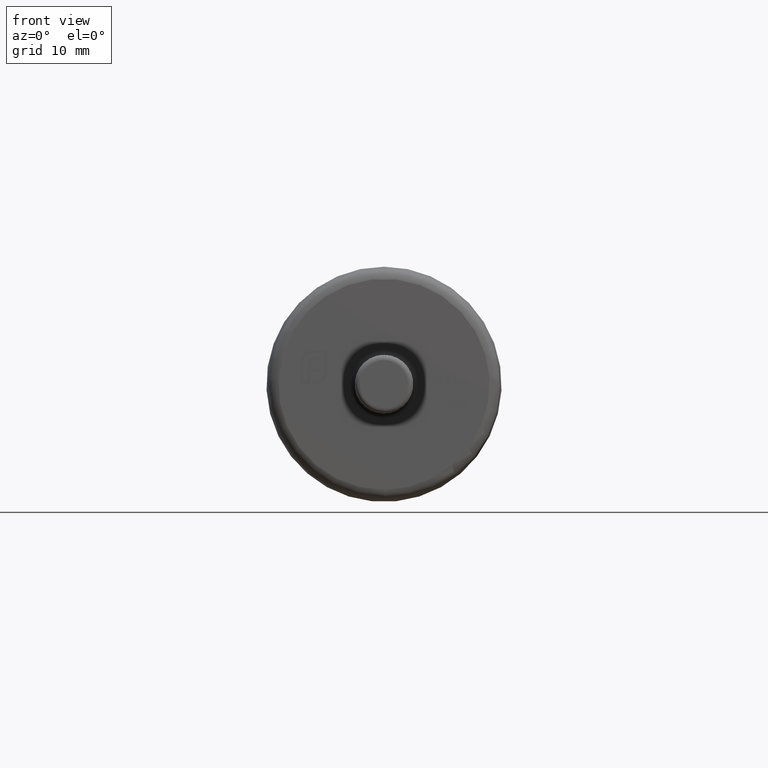
[diagram: clean part render]
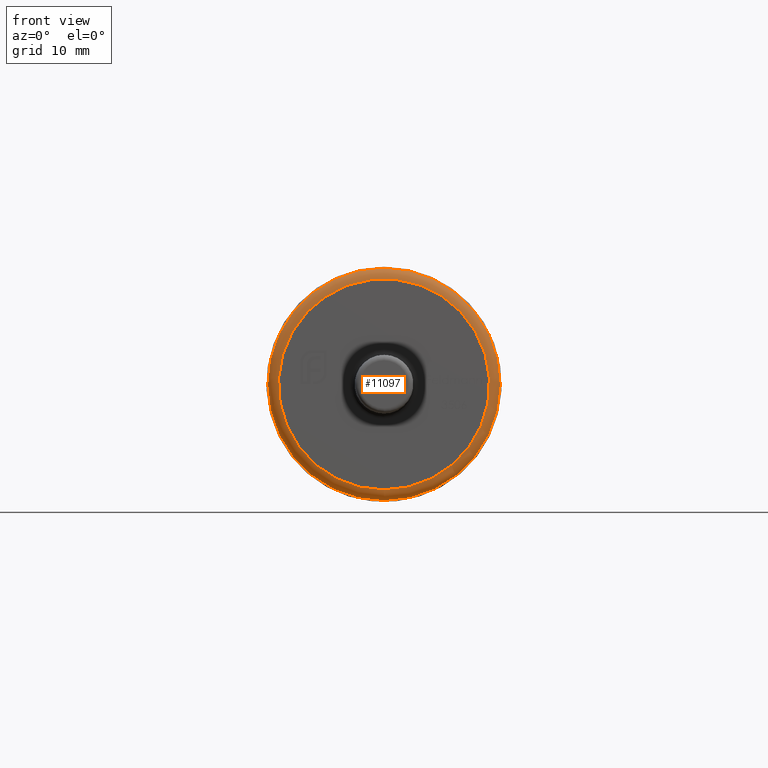
[diagram: same view with one face highlighted and labeled with its STEP entity id]
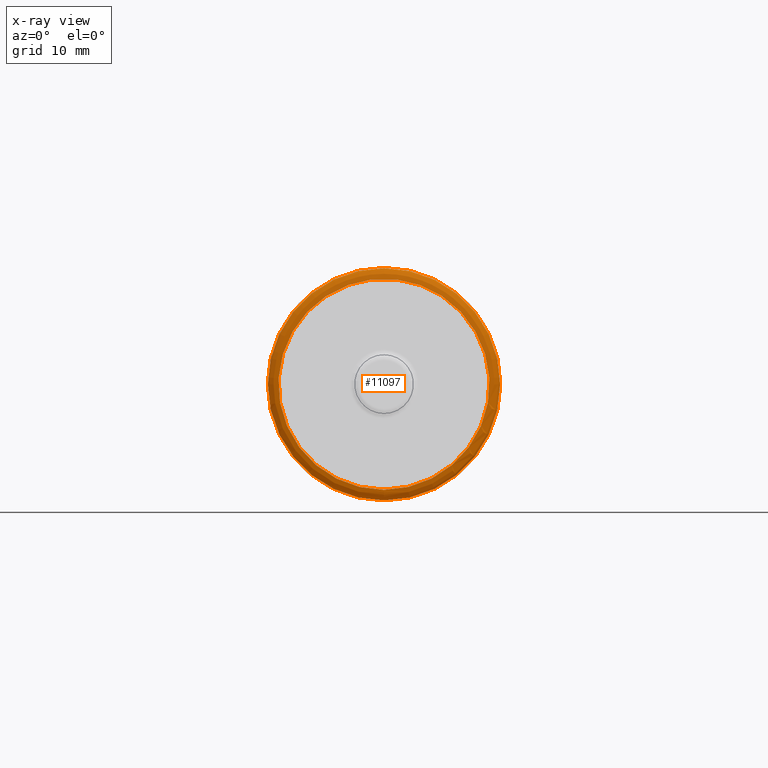
[diagram: x-ray of the same camera — body ghosted, the highlighted face saturated]
A machine part, front view. The second image highlights one B-rep face of the part: STEP entity #11097.
The next image is the same camera in x-ray: the body ghosted, the highlighted face saturated — about 0% of this face is hidden behind the body in this view.
In plain terms, the highlighted toroidal blend (fillet) surface has major radius 9.8755 mm and minor (blend) radius 1 mm.
Its self-contained STEP definition (entity closure, byte-faithful):
#951 = DIRECTION ( 'NONE',  ( 0.000000000000000000, 0.000000000000000000, -1.000000000000000000 ) ) ;
#1460 = CARTESIAN_POINT ( 'NONE',  ( 0.000000000000000000, 23.50000000000000355, -9.875545963306850084 ) ) ;
#2166 = FACE_OUTER_BOUND ( 'NONE', #9223, .T. ) ;
#2481 = CARTESIAN_POINT ( 'NONE',  ( 0.000000000000000000, 24.35000000000000497, 0.000000000000000000 ) ) ;
#3324 = AXIS2_PLACEMENT_3D ( 'NONE', #16380, #5932, #15038 ) ;
#3817 = AXIS2_PLACEMENT_3D ( 'NONE', #2481, #7456, #11517 ) ;
#4353 = AXIS2_PLACEMENT_3D ( 'NONE', #13660, #6096, #951 ) ;
#4833 = ORIENTED_EDGE ( 'NONE', *, *, #16735, .F. ) ;
#5932 = DIRECTION ( 'NONE',  ( -0.000000000000000000, -1.000000000000000000, -0.000000000000000000 ) ) ;
#6002 = TOROIDAL_SURFACE ( 'NONE', #3324, 9.875545963306850084, 1.000000000000000000 ) ;
#6096 = DIRECTION ( 'NONE',  ( -0.000000000000000000, -1.000000000000000000, -0.000000000000000000 ) ) ;
#6402 = FACE_OUTER_BOUND ( 'NONE', #9266, .T. ) ;
#7456 = DIRECTION ( 'NONE',  ( 0.000000000000000000, 1.000000000000000000, 0.000000000000000000 ) ) ;
#8324 = ORIENTED_EDGE ( 'NONE', *, *, #14448, .F. ) ;
#8478 = VERTEX_POINT ( 'NONE', #10442 ) ;
#9223 = EDGE_LOOP ( 'NONE', ( #8324 ) ) ;
#9266 = EDGE_LOOP ( 'NONE', ( #4833 ) ) ;
#10442 = CARTESIAN_POINT ( 'NONE',  ( 0.000000000000000000, 24.35000000000000497, 10.86423195997110724 ) ) ;
#11097 = ADVANCED_FACE ( 'NONE', ( #6402, #2166 ), #6002, .T. ) ;
#11517 = DIRECTION ( 'NONE',  ( 0.000000000000000000, 0.000000000000000000, 1.000000000000000000 ) ) ;
#11900 = VERTEX_POINT ( 'NONE', #1460 ) ;
#13165 = CIRCLE ( 'NONE', #4353, 9.875545963306850084 ) ;
#13660 = CARTESIAN_POINT ( 'NONE',  ( 0.000000000000000000, 23.50000000000000355, 0.000000000000000000 ) ) ;
#14448 = EDGE_CURVE ( 'NONE', #11900, #11900, #13165, .T. ) ;
#15038 = DIRECTION ( 'NONE',  ( 0.000000000000000000, 0.000000000000000000, -1.000000000000000000 ) ) ;
#15756 = CIRCLE ( 'NONE', #3817, 10.86423195997110724 ) ;
#16380 = CARTESIAN_POINT ( 'NONE',  ( 0.000000000000000000, 24.50000000000000355, 0.000000000000000000 ) ) ;
#16735 = EDGE_CURVE ( 'NONE', #8478, #8478, #15756, .T. ) ;